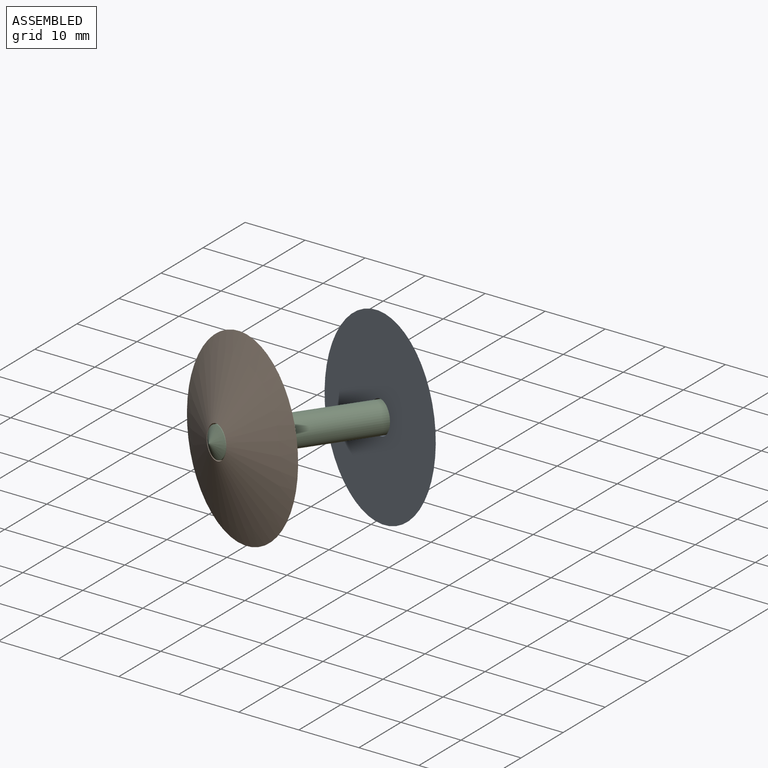
[diagram: assembled view]
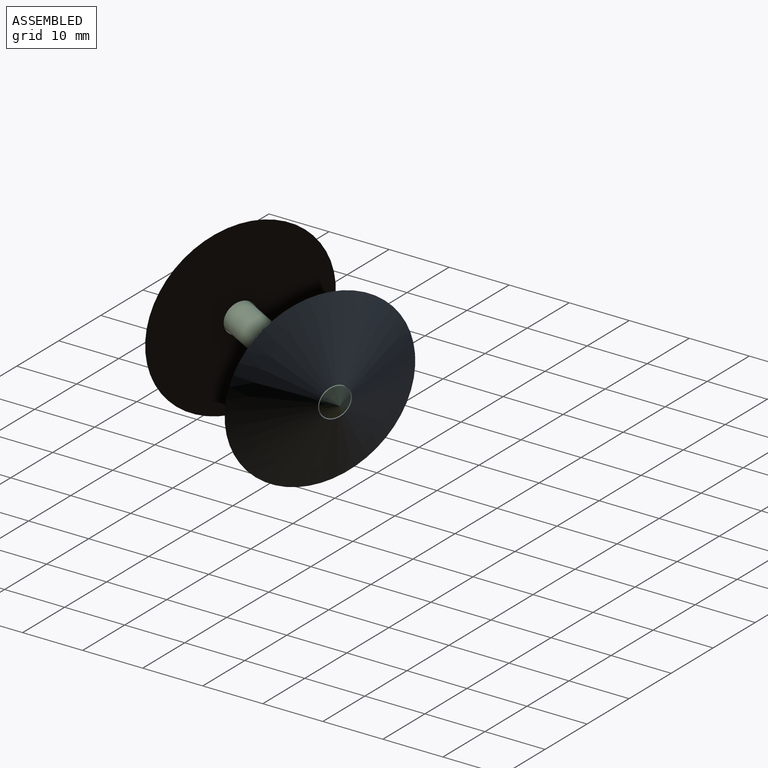
[diagram: assembled view, second angle]
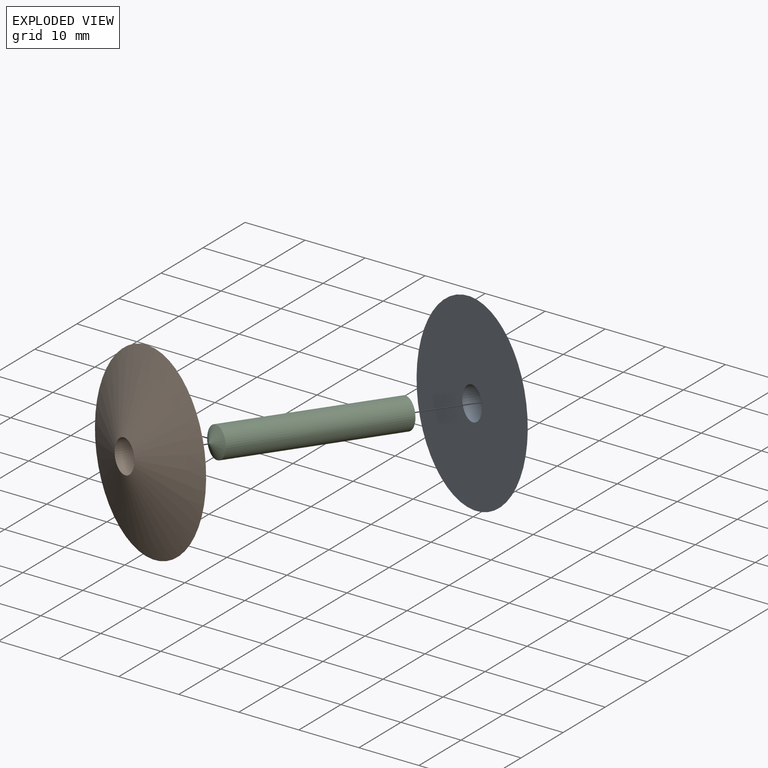
[diagram: exploded view]
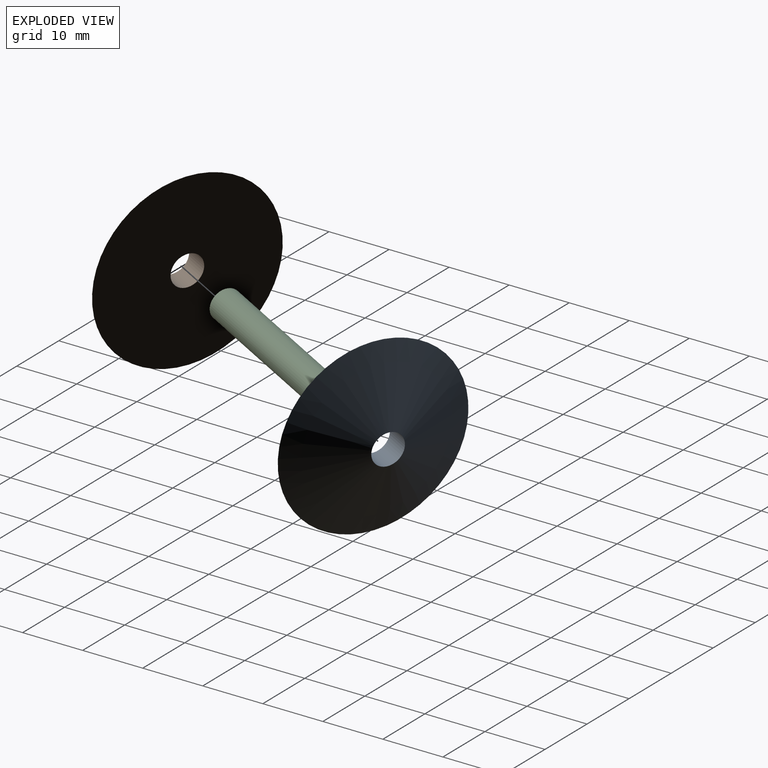
[diagram: exploded view, second angle]
ASSEMBLY  parts=3 mates=4
PART A: 3 faces, bbox 30x30x4.1 mm
  f0: cone r=15mm half-angle=71.6deg, axis (0,0,-1), area 721.8mm2, adj f1,f2
  f1: plane 30x30mm, normal (0,0,-1), area 684.8mm2, adj f0,f2
  f2: cylinder r=2.65mm len=5.3mm, axis (0,0,-1), area 68.5mm2, adj f0,f1
PART B: same geometry as A
PART C: 3 faces, bbox 5x32.5x5 mm
  f0: cylinder r=2.5mm len=30mm, axis (0,1,0), area 471.2mm2, adj f1,f2
  f1: cone r=2.5mm half-angle=63.4deg, axis (0,1,0), area 22mm2, adj f0
  f2: cone r=0mm half-angle=63.4deg, axis (0,-1,0), area 22mm2, adj f0
PLACE A rot(axis=(0.16,0.73,0.67),163.2deg) t=(2.19,-0.95,-0.51)mm
PLACE B rot(axis=(-0.15,-0.67,0.73),161.6deg) t=(-6.97,-20.6,1.39)mm
PLACE C rot(axis=(0.01,0.04,1),155deg) t=(-8.71,-24.32,1.75)mm
MATE planar A.f0 <-> C.f0  axis (-0.42,-0.9,0.09) through (3.92,2.77,-0.87)mm
MATE cylindrical B.f0 <-> C.f0  axis (0.42,0.9,-0.09) through (-7.84,-22.46,1.57)mm
MATE cylindrical A.f0 <-> C.f0  axis (-0.42,-0.9,0.09) through (3.06,0.91,-0.69)mm
MATE planar B.f0 <-> C.f0  axis (0.42,0.9,-0.09) through (-8.71,-24.32,1.75)mm
